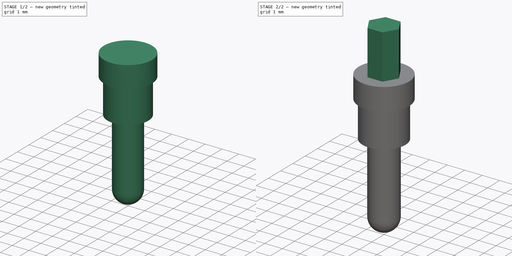
[diagram: build sequence overview — one tinted view per stage of 2, left to right]
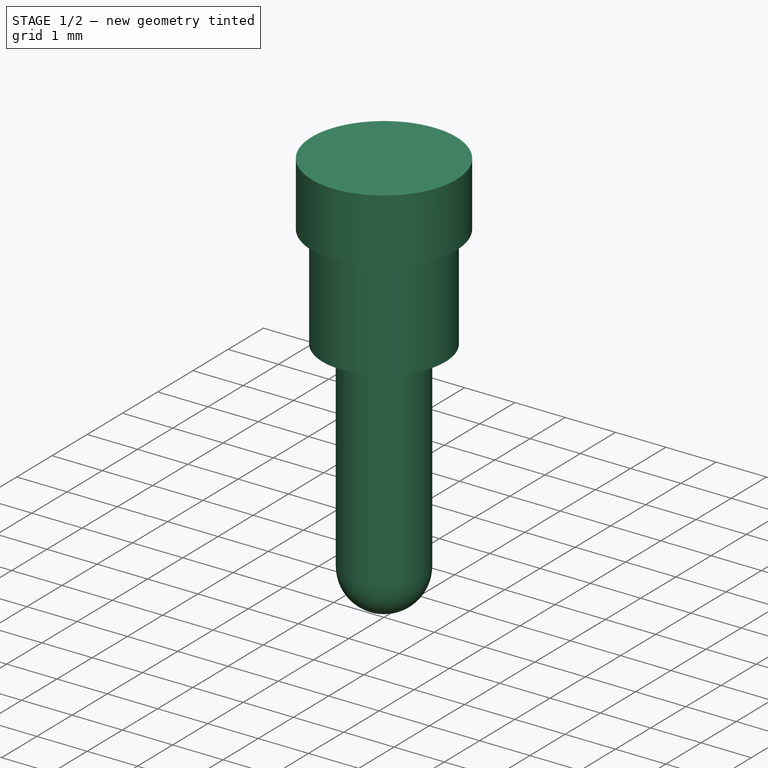
[diagram: stage 1 of 2 — iso view after this stage's code; geometry added in this stage tinted green]
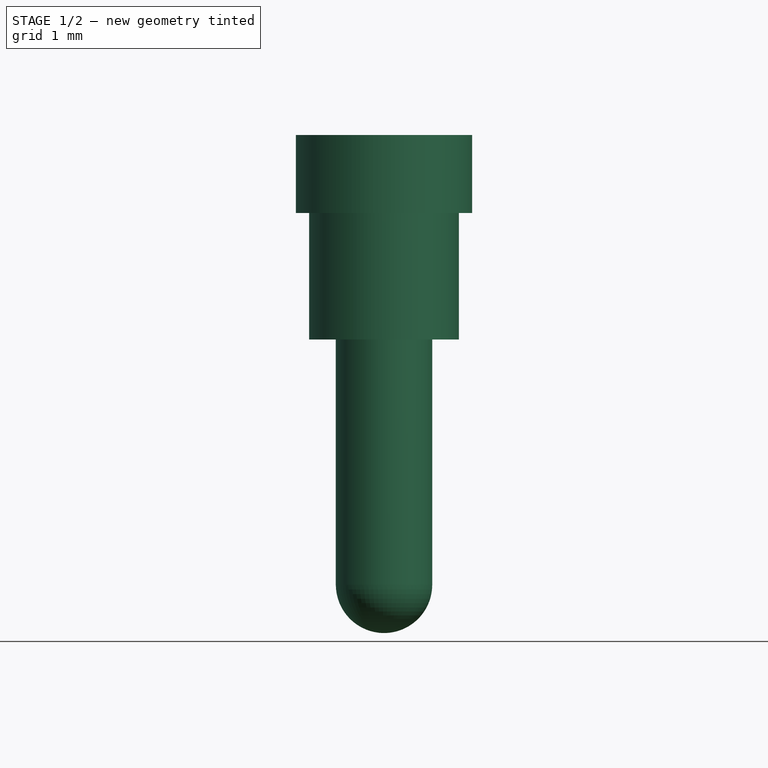
[diagram: stage 1 of 2 — front view after this stage's code; geometry added in this stage tinted green]
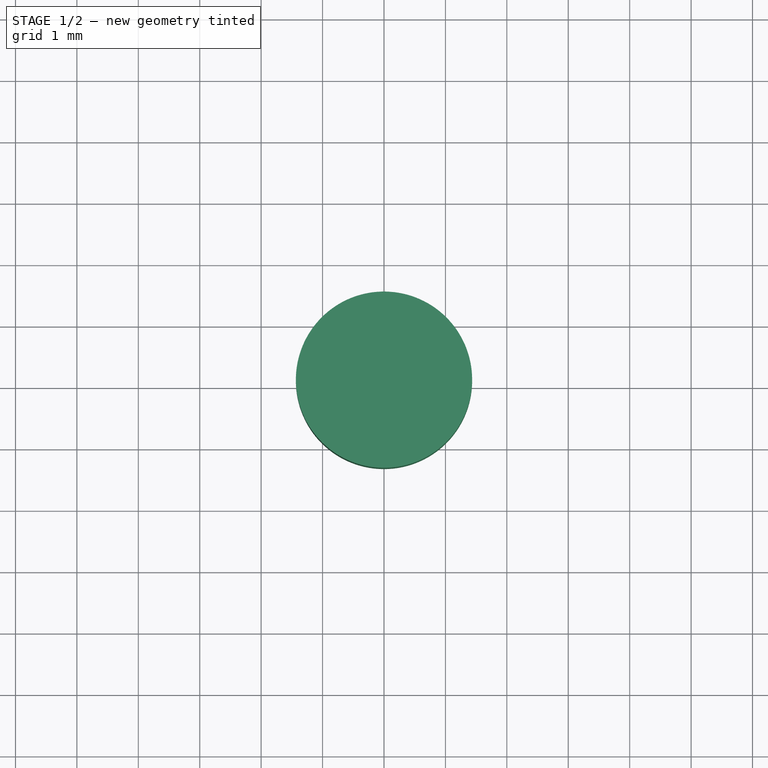
[diagram: stage 1 of 2 — top view after this stage's code; geometry added in this stage tinted green]
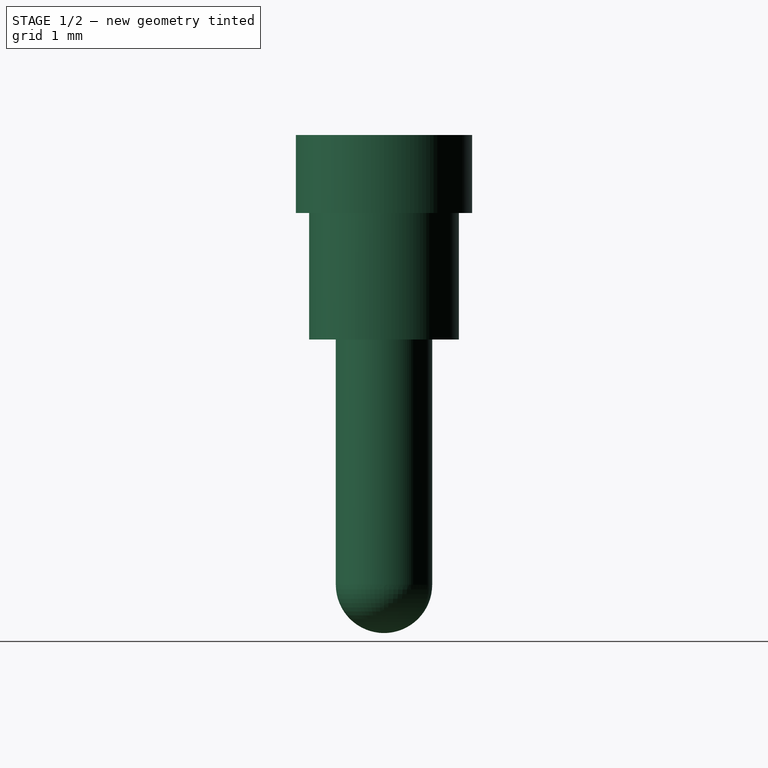
[diagram: stage 1 of 2 — right view after this stage's code; geometry added in this stage tinted green]
FCSTD DOCUMENT  (FreeCAD 0.17R13522 (Git))
Label: 6035-0-00-XX-00-00-03-0
License: All rights reserved
LicenseURL: http://en.wikipedia.org/wiki/All_rights_reserved
objects: Sketcher::SketchObject×2, PartDesign::Revolution×1, PartDesign::Pad×1, PartDesign::Body×1
note: 7 computed .brp shape members not serialized (recipe doc carries the construction recipe); baked Part::Feature solids carry a one-line shape summary decoded from their .brp

FEATURE [Sketcher::SketchObject] Sketch
  MapMode = 5
  Placement = pos=(0,0,0) rot=(1,0,0;1.5708rad)
  Support = -> [XZ_Plane]
  sketch-geometry (17):
    g0: LineSegment StartX=0 StartY=0 StartZ=0 EndX=1.435 EndY=0 EndZ=0
    g1: LineSegment StartX=1.435 StartY=0 StartZ=0 EndX=1.435 EndY=-1.27 EndZ=0
    g2: LineSegment [constr] StartX=-1.435 StartY=-1.27 StartZ=0 EndX=-1.435 EndY=0 EndZ=0
    g3: LineSegment StartX=1.22 StartY=-1.27 StartZ=0 EndX=1.22 EndY=-3.33 EndZ=0
    g4: LineSegment [constr] StartX=-1.22 StartY=-3.33 StartZ=0 EndX=-1.22 EndY=-1.27 EndZ=0
    g5: LineSegment StartX=0.785 StartY=-3.33 StartZ=0 EndX=0.785 EndY=-7.32302 EndZ=0
    g6: LineSegment [constr] StartX=-0.785 StartY=-7.32501 StartZ=0 EndX=-0.785 EndY=-3.33 EndZ=0
    g7: LineSegment [constr] StartX=-1.435 StartY=-1.27 StartZ=0 EndX=-1.22 EndY=-1.27 EndZ=0
    g8: LineSegment StartX=1.22 StartY=-1.27 StartZ=0 EndX=1.435 EndY=-1.27 EndZ=0
    g9: LineSegment [constr] StartX=-1.22 StartY=-3.33 StartZ=0 EndX=-0.785 EndY=-3.33 EndZ=0
    g10: LineSegment StartX=0.785 StartY=-3.33 StartZ=0 EndX=1.22 EndY=-3.33 EndZ=0
    g11: ArcOfCircle CenterX=-0.00198226 CenterY=-7.32302 CenterZ=0 NormalX=0 NormalY=0 NormalZ=1 AngleXU=0 Radius=0.786982 StartAngle=4.71491 EndAngle=6.28319
    g12: LineSegment [constr] StartX=-0.785 StartY=-7.32501 StartZ=0 EndX=-0.785 EndY=-8.11 EndZ=0
    g13: LineSegment [constr] StartX=-0.785 StartY=-8.11 StartZ=0 EndX=0.785 EndY=-8.11 EndZ=0
    g14: LineSegment [constr] StartX=0.785 StartY=-8.11 StartZ=0 EndX=0.785 EndY=-7.32302 EndZ=0
    g15: LineSegment StartX=-2e-11 StartY=0 StartZ=0 EndX=-2e-11 EndY=-8.11 EndZ=0
    g16: ArcOfCircle [constr] CenterX=-3.93068e-06 CenterY=-7.325 CenterZ=0 NormalX=0 NormalY=0 NormalZ=1 AngleXU=0 Radius=0.784996 StartAngle=3.1416 EndAngle=4.71239
  constraints (51):
    c: Coincident(g0,g1)
    c: Horizontal(g0)
    c: Vertical(g1)
    c: Vertical(g2)
    c: Vertical(g3)
    c: Vertical(g4)
    c: Vertical(g5)
    c: Vertical(g6)
    c: PointOnObject(g-1,g0)
    c: DistanceY(g1,g1) = 1.27
    c: DistanceX(g2,g0) = 2.87
    c: Coincident(g7,g2)
    c: Coincident(g7,g4)
    c: Coincident(g8,g3)
    c: Coincident(g8,g1)
    c: Horizontal(g8)
    c: Horizontal(g7)
    c: Symmetric(g3,g4,g-2)
    c: DistanceX(g4,g3) = 2.44
    c: DistanceY(g3,g0) = 3.33
    c: Coincident(g9,g4)
    c: Coincident(g10,g5)
    c: Coincident(g10,g3)
    c: Coincident(g9,g6)
    c: Horizontal(g9)
    c: Horizontal(g10)
    c: Symmetric(g5,g6,g-2)
    c: DistanceX(g6,g5) = 1.57
    c: Coincident(g11,g5)
    c: Tangent(g11,g5)
    c: Coincident(g12,g6)
    c: Vertical(g12)
    c: Coincident(g13,g12)
    c: Horizontal(g13)
    c: Coincident(g14,g13)
    c: Coincident(g14,g5)
    c: Vertical(g14)
    c: DistanceY(g13,g3) = 4.78
    c: Coincident(g15,g-1)
    c: PointOnObject(g15,g11)
    c: Vertical(g15)
    c: Coincident(g11,g13)
    c: PointOnObject(g0,g15)
    c: PointOnObject(g11,g13)
    c: PointOnObject(g2,g-1)
    c: Symmetric(g0,g2,g-2)
    c: Coincident(g16,g6)
    c: Coincident(g16,g15)
    c: Tangent(g16,g12)
    c: Tangent(g16,g13)
    c: Coincident(g11,g15)
FEATURE [PartDesign::Revolution] Revolution
  Angle = 360
  Axis = (0,0,1)
  Base = (0,0,0)
  Placement = pos=(0,0,0) rot=(1,0,0;1.5708rad)
  Profile = -> Sketch
  ReferenceAxis = -> Z_Axis
  Refine = true
  Reversed = true
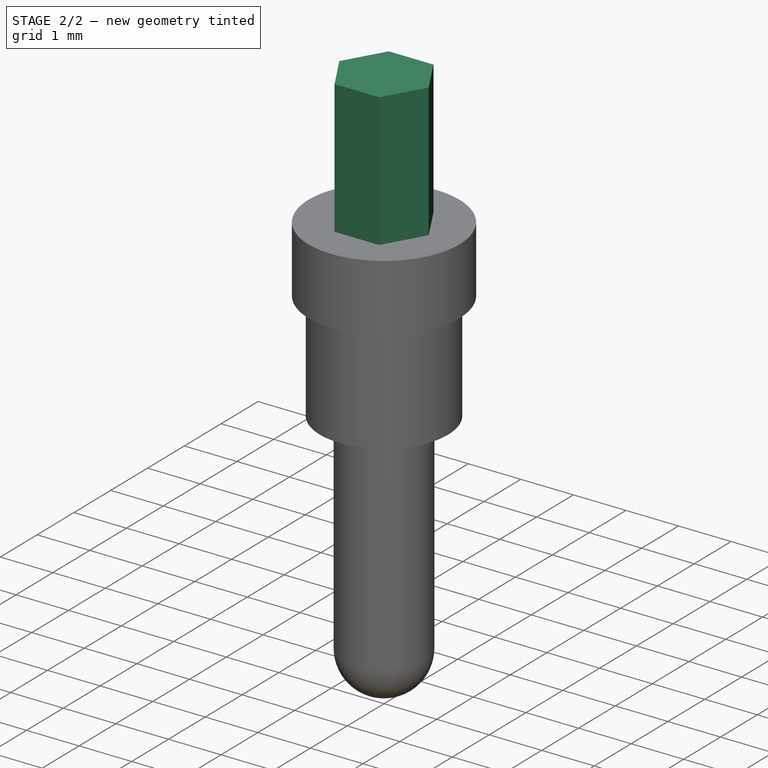
[diagram: stage 2 of 2 — iso view after this stage's code; geometry added in this stage tinted green]
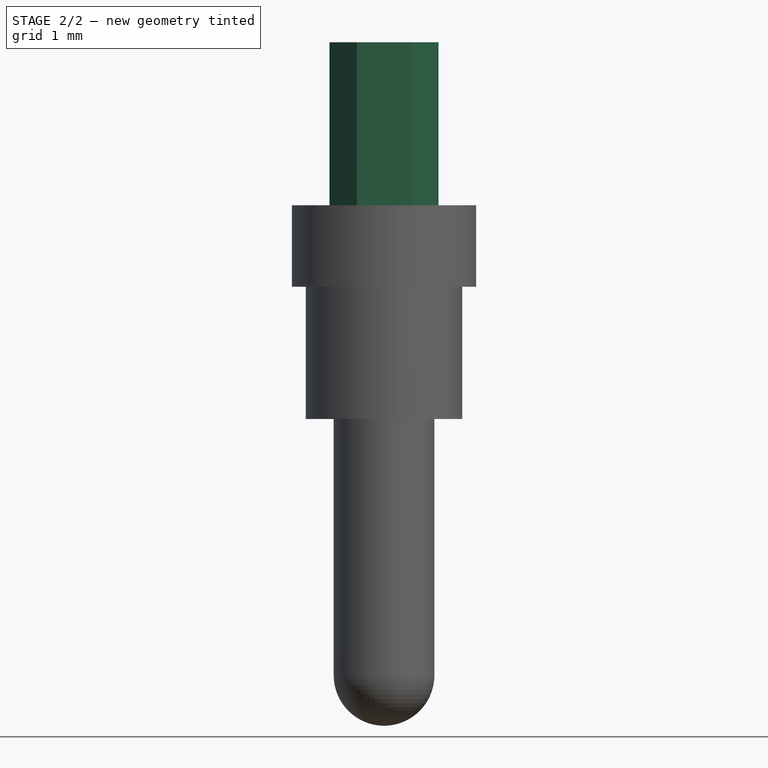
[diagram: stage 2 of 2 — front view after this stage's code; geometry added in this stage tinted green]
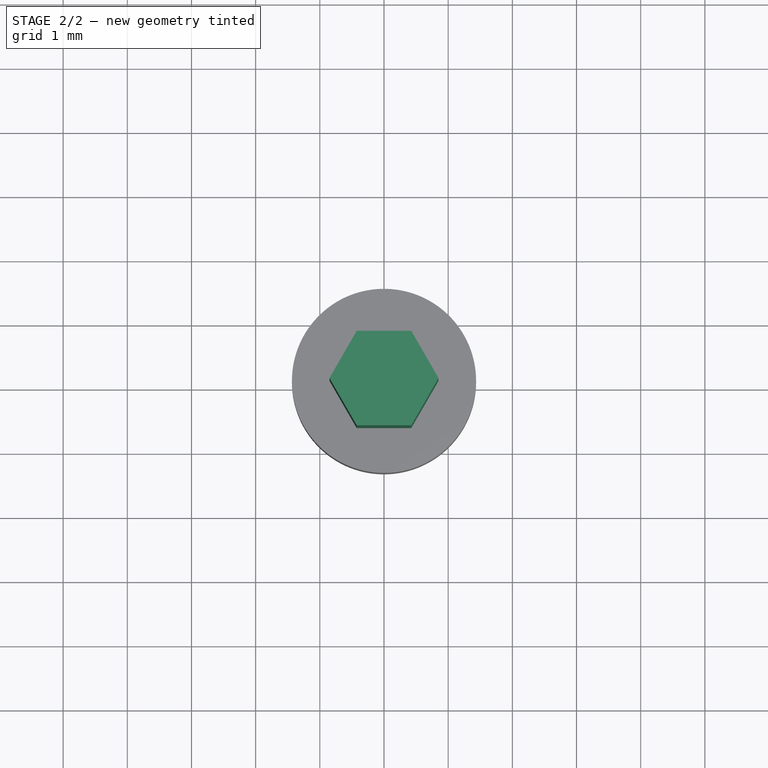
[diagram: stage 2 of 2 — top view after this stage's code; geometry added in this stage tinted green]
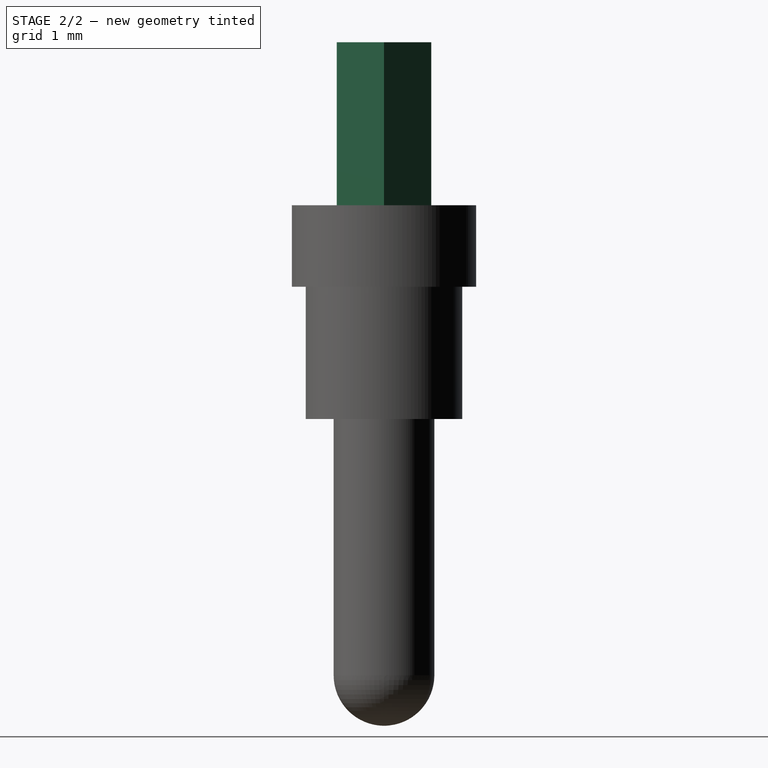
[diagram: stage 2 of 2 — right view after this stage's code; geometry added in this stage tinted green]
FEATURE [Sketcher::SketchObject] Sketch001
  MapMode = 5
  Placement = pos=(0,0,0) rot=(0,0,1;3.14159rad)
  Support = -> [Revolution]
  expr: Constraints[19] = 1.7 / 2
  sketch-geometry (7):
    g0: LineSegment StartX=0.425 StartY=0.736122 StartZ=0 EndX=-0.425 EndY=0.736122 EndZ=0
    g1: LineSegment StartX=-0.425 StartY=0.736122 StartZ=0 EndX=-0.85 EndY=0 EndZ=0
    g2: LineSegment StartX=-0.85 StartY=0 StartZ=0 EndX=-0.425 EndY=-0.736122 EndZ=0
    g3: LineSegment StartX=-0.425 StartY=-0.736122 StartZ=0 EndX=0.425 EndY=-0.736122 EndZ=0
    g4: LineSegment StartX=0.425 StartY=-0.736122 StartZ=0 EndX=0.85 EndY=0 EndZ=0
    g5: LineSegment StartX=0.85 StartY=0 StartZ=0 EndX=0.425 EndY=0.736122 EndZ=0
    g6: Circle [constr] CenterX=0 CenterY=0 CenterZ=0 NormalX=0 NormalY=0 NormalZ=1 AngleXU=0 Radius=0.85
  constraints (16):
    c: Coincident(g0,g1)
    c: Coincident(g1,g2)
    c: Coincident(g2,g3)
    c: Coincident(g3,g4)
    c: Coincident(g4,g5)
    c: Coincident(g5,g0)
    c: Equal(g0, g1-g5) x5
    c: PointOnObject(g0,g6)
    c: PointOnObject(g1,g6)
    c: PointOnObject(g2,g6)
    c: PointOnObject(g3,g6)
    c: PointOnObject(g4,g6)
    c: PointOnObject(g5,g6)
    c: Coincident(g6,g-1)
    c: Horizontal(g0)
    c: Radius(g6) = 0.85
FEATURE [PartDesign::Pad] Pad
  BaseFeature = -> Revolution
  Length = 2.54
  Length2 = 100
  Placement = pos=(0,0,0) rot=(1,0,0;1.5708rad)
  Profile = -> Sketch001
  Refine = true
  Type = 0
FEATURE [PartDesign::Body] Body
  Group = -> [Sketch,Revolution,Sketch001,Pad]
  Origin = -> Origin
  Tip = -> Pad
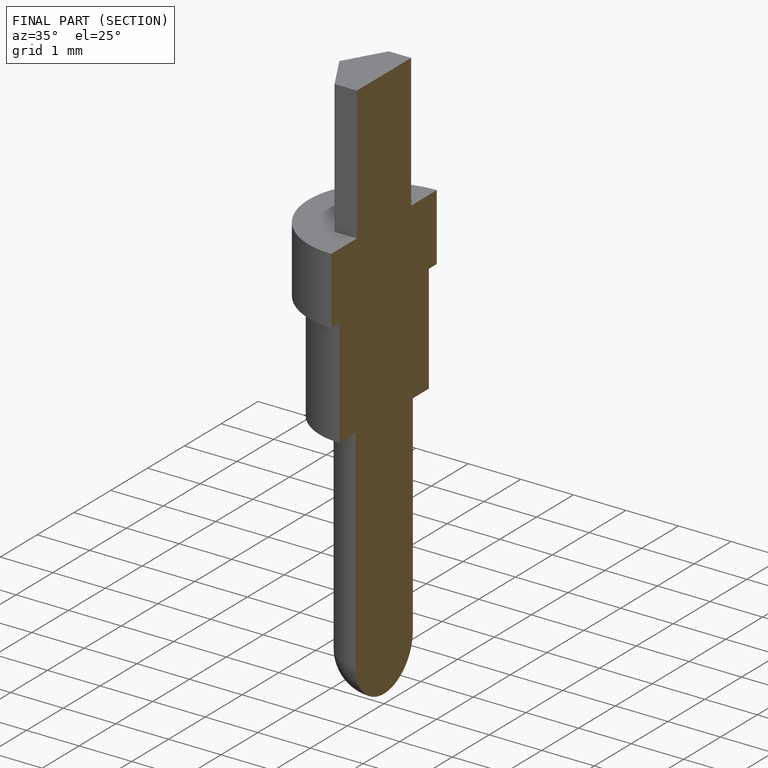
[diagram: finished part — half-section view (interior)]
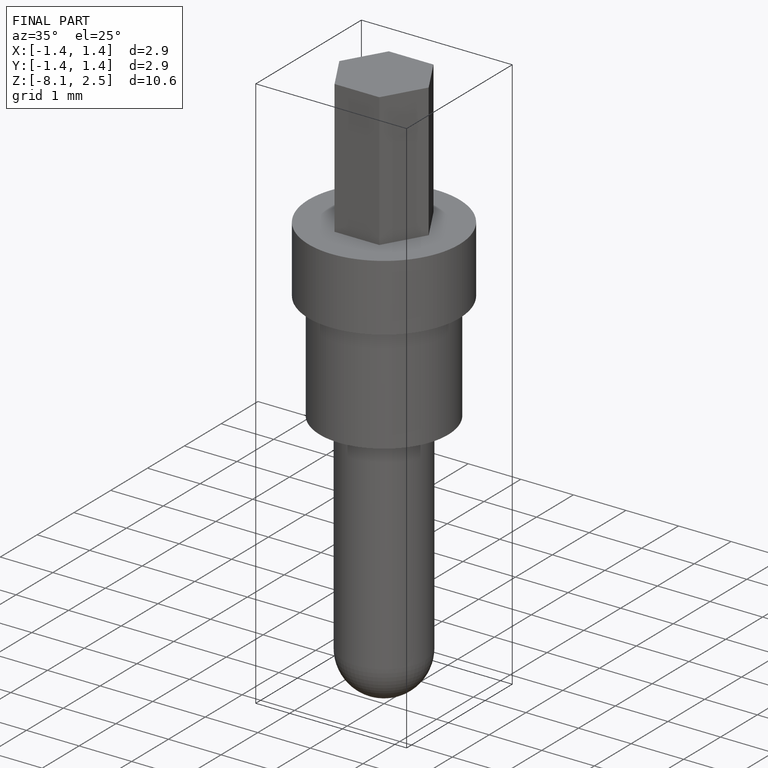
[diagram: finished part — iso view with bounding-box wireframe]
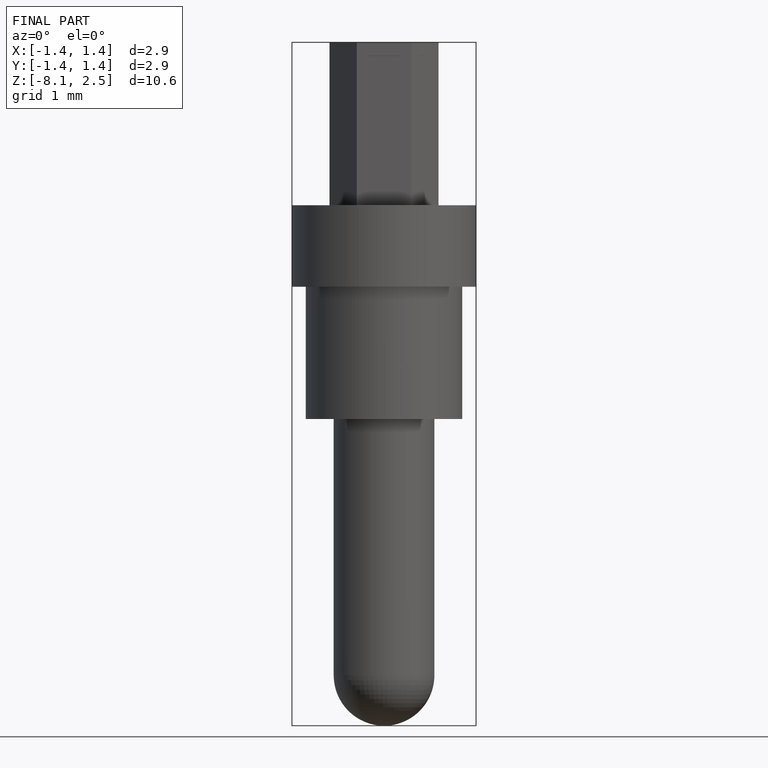
[diagram: finished part — front view with bounding-box wireframe]
